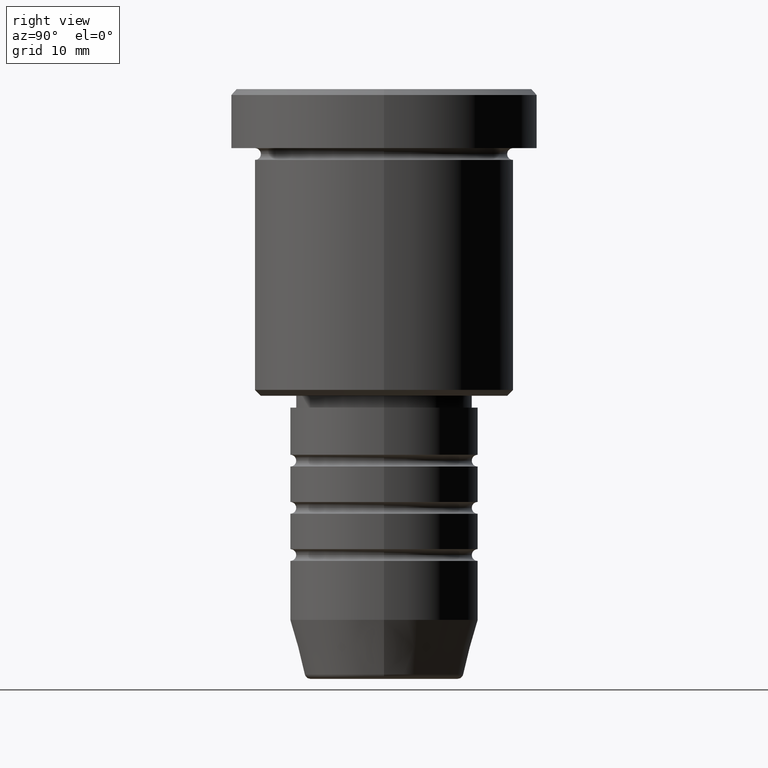
[diagram: clean part render]
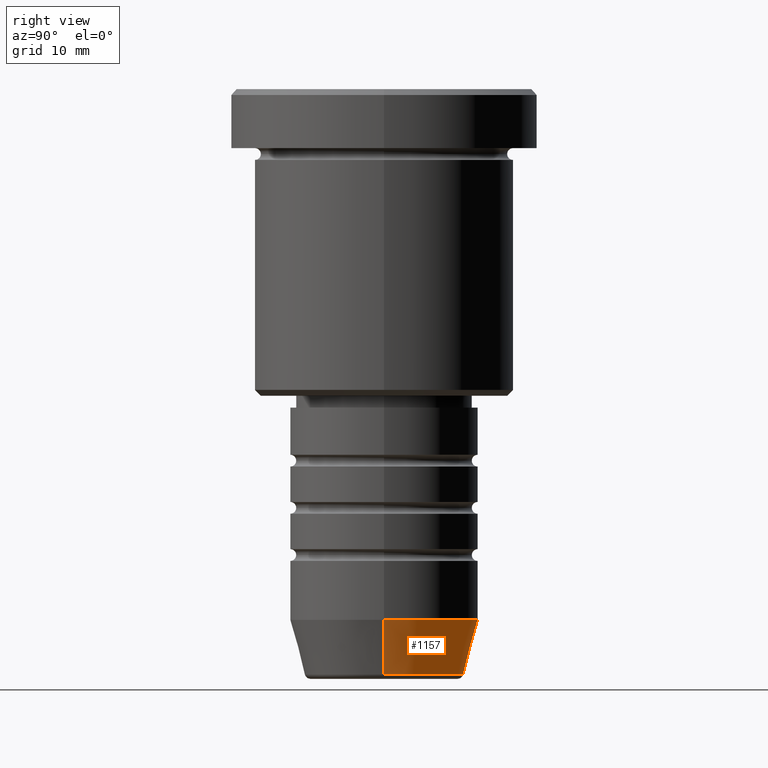
[diagram: same view with one face highlighted and labeled with its STEP entity id]
A machine part, right view. The second image highlights one B-rep face of the part: STEP entity #1157.
In plain terms, the highlighted conical surface has half-angle 15 deg.
Its self-contained STEP definition (entity closure, byte-faithful):
#31 = ORIENTED_EDGE ( 'NONE', *, *, #643, .T. ) ;
#54 = EDGE_CURVE ( 'NONE', #236, #1010, #104, .T. ) ;
#104 = LINE ( 'NONE', #384, #646 ) ;
#105 = LINE ( 'NONE', #195, #1054 ) ;
#174 = AXIS2_PLACEMENT_3D ( 'NONE', #308, #1067, #586 ) ;
#186 = ORIENTED_EDGE ( 'NONE', *, *, #54, .F. ) ;
#195 = CARTESIAN_POINT ( 'NONE',  ( -8.000000000000000000, 9.797174393178825657E-16, -45.00000000000000711 ) ) ;
#225 = FACE_OUTER_BOUND ( 'NONE', #366, .T. ) ;
#232 = DIRECTION ( 'NONE',  ( 1.000000000000000000, 0.000000000000000000, 0.000000000000000000 ) ) ;
#233 = CIRCLE ( 'NONE', #276, 8.000000000000000000 ) ;
#236 = VERTEX_POINT ( 'NONE', #1061 ) ;
#242 = DIRECTION ( 'NONE',  ( -0.000000000000000000, -0.000000000000000000, 1.000000000000000000 ) ) ;
#276 = AXIS2_PLACEMENT_3D ( 'NONE', #916, #242, #1106 ) ;
#296 = DIRECTION ( 'NONE',  ( 0.2588190451025214611, 0.000000000000000000, 0.9659258262890679791 ) ) ;
#308 = CARTESIAN_POINT ( 'NONE',  ( 0.000000000000000000, 0.000000000000000000, -45.00000000000000711 ) ) ;
#366 = EDGE_LOOP ( 'NONE', ( #31, #725, #1126, #186 ) ) ;
#384 = CARTESIAN_POINT ( 'NONE',  ( 8.000000000000000000, 0.000000000000000000, -45.00000000000000711 ) ) ;
#392 = CARTESIAN_POINT ( 'NONE',  ( 0.000000000000000000, 0.000000000000000000, -49.62940952255126348 ) ) ;
#394 = DIRECTION ( 'NONE',  ( -0.2588190451025214611, 3.169619151431774186E-17, 0.9659258262890679791 ) ) ;
#442 = EDGE_CURVE ( 'NONE', #1025, #1082, #105, .T. ) ;
#480 = CARTESIAN_POINT ( 'NONE',  ( -6.759553456999436882, 9.037619948979306213E-16, -49.62940952255126348 ) ) ;
#507 = AXIS2_PLACEMENT_3D ( 'NONE', #392, #755, #232 ) ;
#531 = CONICAL_SURFACE ( 'NONE', #174, 8.000000000000000000, 0.2617993877991502405 ) ;
#586 = DIRECTION ( 'NONE',  ( 1.000000000000000000, 0.000000000000000000, 0.000000000000000000 ) ) ;
#643 = EDGE_CURVE ( 'NONE', #236, #1025, #734, .T. ) ;
#646 = VECTOR ( 'NONE', #296, 1000.000000000000114 ) ;
#650 = CARTESIAN_POINT ( 'NONE',  ( 8.000000000000000000, 0.000000000000000000, -45.00000000000000711 ) ) ;
#725 = ORIENTED_EDGE ( 'NONE', *, *, #442, .T. ) ;
#734 = CIRCLE ( 'NONE', #507, 6.759553456999436882 ) ;
#755 = DIRECTION ( 'NONE',  ( -0.000000000000000000, -0.000000000000000000, 1.000000000000000000 ) ) ;
#811 = CARTESIAN_POINT ( 'NONE',  ( -8.000000000000000000, 9.797174393178825657E-16, -45.00000000000000711 ) ) ;
#916 = CARTESIAN_POINT ( 'NONE',  ( 0.000000000000000000, 0.000000000000000000, -45.00000000000000711 ) ) ;
#1010 = VERTEX_POINT ( 'NONE', #650 ) ;
#1025 = VERTEX_POINT ( 'NONE', #480 ) ;
#1054 = VECTOR ( 'NONE', #394, 1000.000000000000114 ) ;
#1061 = CARTESIAN_POINT ( 'NONE',  ( 6.759553456999436882, 0.000000000000000000, -49.62940952255126348 ) ) ;
#1067 = DIRECTION ( 'NONE',  ( -0.000000000000000000, -0.000000000000000000, 1.000000000000000000 ) ) ;
#1082 = VERTEX_POINT ( 'NONE', #811 ) ;
#1106 = DIRECTION ( 'NONE',  ( 1.000000000000000000, 0.000000000000000000, 0.000000000000000000 ) ) ;
#1110 = EDGE_CURVE ( 'NONE', #1010, #1082, #233, .T. ) ;
#1126 = ORIENTED_EDGE ( 'NONE', *, *, #1110, .F. ) ;
#1157 = ADVANCED_FACE ( 'NONE', ( #225 ), #531, .T. ) ;